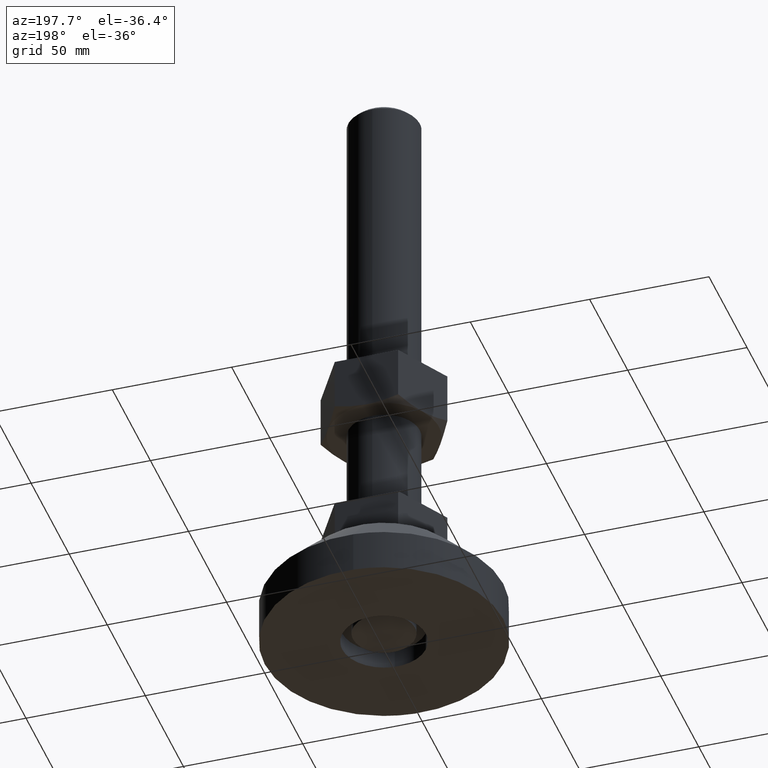
[diagram: clean part render]
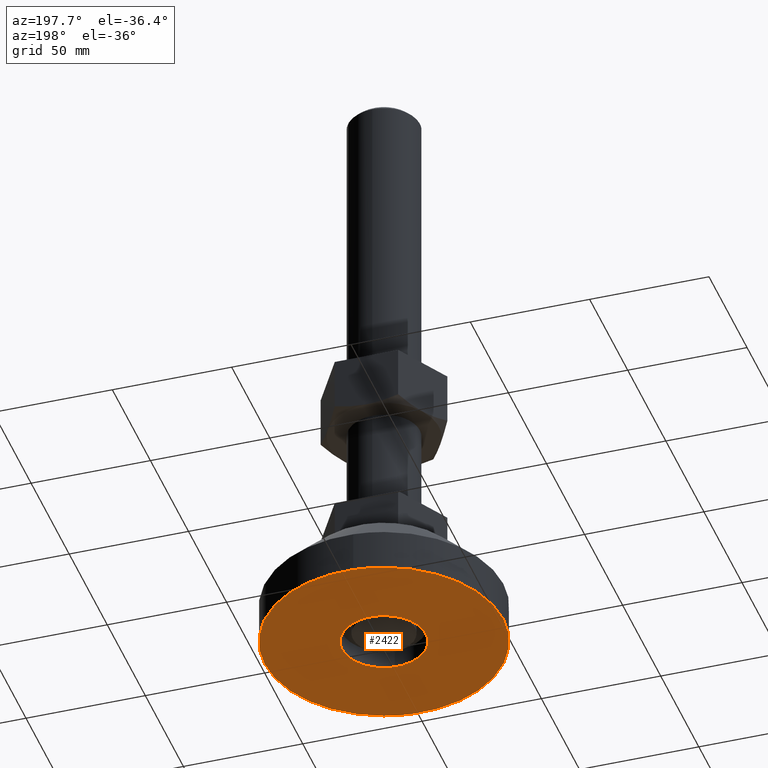
[diagram: same view with one face highlighted and labeled with its STEP entity id]
A machine part, auxiliary view. The second image highlights one B-rep face of the part: STEP entity #2422.
In plain terms, the highlighted face is a freeform B-spline surface patch.
Its self-contained STEP definition (entity closure, byte-faithful):
#2243=CARTESIAN_POINT('',(3.052355231261034,-49.906744309131483,-5.517808E-014));
#2244=VERTEX_POINT('',#2243);
#2250=CARTESIAN_POINT('',(50.000000000000220,0.0,0.0));
#2251=VERTEX_POINT('',#2250);
#2252=CARTESIAN_POINT('',(50.000000000000220,0.0,0.0));
#2253=CARTESIAN_POINT('',(49.999999999998650,-47.035371089185354,-2.758904E-014));
#2254=CARTESIAN_POINT('',(3.052355231261034,-49.906744309131490,-5.517808E-014));
#2262=(BOUNDED_CURVE()B_SPLINE_CURVE(2,(#2252,#2253,#2254),.UNSPECIFIED.,.F.,.U.)B_SPLINE_CURVE_WITH_KNOTS((3,3),(0.500000000000000,0.739333210293733),.UNSPECIFIED.)CURVE()GEOMETRIC_REPRESENTATION_ITEM()RATIONAL_B_SPLINE_CURVE((1.0,0.719603702672447,0.976072573295928))REPRESENTATION_ITEM(''));
#2263=EDGE_CURVE('',#2251,#2244,#2262,.T.);
#2265=CARTESIAN_POINT('',(-3.052355231260599,49.906744309131483,-5.723200E-014));
#2266=VERTEX_POINT('',#2265);
#2267=CARTESIAN_POINT('',(-3.052355231260599,49.906744309131483,-5.723200E-014));
#2268=CARTESIAN_POINT('',(-1.527602191605375,49.999999999949175,-5.640956E-014));
#2269=CARTESIAN_POINT('',(3.285217E-012,49.999999999949949,-5.553528E-014));
#2270=CARTESIAN_POINT('',(50.000000000001705,49.999999999975742,-2.691928E-014));
#2271=CARTESIAN_POINT('',(50.000000000000220,0.0,0.0));
#2279=(BOUNDED_CURVE()B_SPLINE_CURVE(2,(#2267,#2268,#2269,#2270,#2271),.UNSPECIFIED.,.F.,.U.)B_SPLINE_CURVE_WITH_KNOTS((3,2,3),(0.239333210293733,0.250000000000000,0.500000000000000),.UNSPECIFIED.)CURVE()GEOMETRIC_REPRESENTATION_ITEM()RATIONAL_B_SPLINE_CURVE((0.976072573295928,0.987503078514101,1.0,0.707106781186547,1.0))REPRESENTATION_ITEM(''));
#2280=EDGE_CURVE('',#2266,#2251,#2279,.T.);
#2310=CARTESIAN_POINT('',(-49.999999999999787,0.0,-5.684342E-014));
#2311=VERTEX_POINT('',#2310);
#2312=CARTESIAN_POINT('',(-49.999999999999787,0.0,-5.684342E-014));
#2313=CARTESIAN_POINT('',(-49.999999999998209,47.035371089185347,-5.703771E-014));
#2314=CARTESIAN_POINT('',(-3.052355231260599,49.906744309131483,-5.723200E-014));
#2322=(BOUNDED_CURVE()B_SPLINE_CURVE(2,(#2312,#2313,#2314),.UNSPECIFIED.,.F.,.U.)B_SPLINE_CURVE_WITH_KNOTS((3,3),(0.0,0.239333210293733),.UNSPECIFIED.)CURVE()GEOMETRIC_REPRESENTATION_ITEM()RATIONAL_B_SPLINE_CURVE((1.0,0.719603702672447,0.976072573295928))REPRESENTATION_ITEM(''));
#2323=EDGE_CURVE('',#2311,#2266,#2322,.T.);
#2325=CARTESIAN_POINT('',(3.052355231261034,-49.906744309131490,-5.517808E-014));
#2326=CARTESIAN_POINT('',(1.527602191605813,-49.999999999949175,-5.520202E-014));
#2327=CARTESIAN_POINT('',(-2.842517E-012,-49.999999999949956,-5.522746E-014));
#2328=CARTESIAN_POINT('',(-50.000000000001272,-49.999999999975742,-5.606012E-014));
#2329=CARTESIAN_POINT('',(-49.999999999999787,0.0,-5.684342E-014));
#2337=(BOUNDED_CURVE()B_SPLINE_CURVE(2,(#2325,#2326,#2327,#2328,#2329),.UNSPECIFIED.,.F.,.U.)B_SPLINE_CURVE_WITH_KNOTS((3,2,3),(0.739333210293733,0.750000000000000,1.0),.UNSPECIFIED.)CURVE()GEOMETRIC_REPRESENTATION_ITEM()RATIONAL_B_SPLINE_CURVE((0.976072573295928,0.987503078514101,1.0,0.707106781186547,1.0))REPRESENTATION_ITEM(''));
#2338=EDGE_CURVE('',#2244,#2311,#2337,.T.);
#2345=CARTESIAN_POINT('',(54.994999806180822,-54.993769365459613,-2.842171E-014));
#2346=CARTESIAN_POINT('',(-54.995002488389403,-54.993769365459613,-2.842171E-014));
#2347=CARTESIAN_POINT('',(54.994999806180822,54.993767577320263,-2.842171E-014));
#2348=CARTESIAN_POINT('',(-54.995002488389389,54.993767577320263,-2.842171E-014));
#2349=B_SPLINE_SURFACE_WITH_KNOTS('',1,1,((#2345,#2347),(#2346,#2348)),.UNSPECIFIED.,.F.,.F.,.U.,(2,2),(2,2),(0.0,109.990002294570200),(0.0,109.987536942779900),.UNSPECIFIED.);
#2350=ORIENTED_EDGE('',*,*,#2323,.T.);
#2351=ORIENTED_EDGE('',*,*,#2280,.T.);
#2352=ORIENTED_EDGE('',*,*,#2263,.T.);
#2353=ORIENTED_EDGE('',*,*,#2338,.T.);
#2354=EDGE_LOOP('',(#2350,#2351,#2352,#2353));
#2355=FACE_OUTER_BOUND('',#2354,.T.);
#2356=CARTESIAN_POINT('',(-17.499999999999901,-1.705303E-013,0.0));
#2357=VERTEX_POINT('',#2356);
#2358=CARTESIAN_POINT('',(-1.068349442234179,17.467358972359609,1.105163E-013));
#2359=VERTEX_POINT('',#2358);
#2360=CARTESIAN_POINT('',(-17.499999999999901,-1.705303E-013,0.0));
#2361=CARTESIAN_POINT('',(-17.499999999999897,16.462356170496090,1.044394E-013));
#2362=CARTESIAN_POINT('',(-1.068349442234178,17.467358972359616,1.108152E-013));
#2370=(BOUNDED_CURVE()B_SPLINE_CURVE(2,(#2360,#2361,#2362),.UNSPECIFIED.,.F.,.U.)B_SPLINE_CURVE_WITH_KNOTS((3,3),(0.500000000000000,0.739332962238271),.UNSPECIFIED.)CURVE()GEOMETRIC_REPRESENTATION_ITEM()RATIONAL_B_SPLINE_CURVE((1.0,0.719603993287497,0.976072041665278))REPRESENTATION_ITEM(''));
#2371=EDGE_CURVE('',#2357,#2359,#2370,.T.);
#2372=ORIENTED_EDGE('',*,*,#2371,.F.);
#2373=CARTESIAN_POINT('',(1.068349442234380,-17.467358972359950,1.106198E-013));
#2374=VERTEX_POINT('',#2373);
#2375=CARTESIAN_POINT('',(1.068349442234381,-17.467358972359946,1.110223E-013));
#2376=CARTESIAN_POINT('',(0.534673357913072,-17.500000000000174,1.110223E-013));
#2377=CARTESIAN_POINT('',(9.947598E-014,-17.500000000000171,1.110223E-013));
#2378=CARTESIAN_POINT('',(-17.499999999999897,-17.500000000000167,1.110223E-013));
#2379=CARTESIAN_POINT('',(-17.499999999999901,-1.705303E-013,1.110223E-013));
#2387=(BOUNDED_CURVE()B_SPLINE_CURVE(2,(#2375,#2376,#2377,#2378,#2379),.UNSPECIFIED.,.F.,.U.)B_SPLINE_CURVE_WITH_KNOTS((3,2,3),(0.239332962238271,0.250000000000000,0.500000000000000),.UNSPECIFIED.)CURVE()GEOMETRIC_REPRESENTATION_ITEM()RATIONAL_B_SPLINE_CURVE((0.976072041665278,0.987502787899050,1.0,0.707106781186548,1.0))REPRESENTATION_ITEM(''));
#2388=EDGE_CURVE('',#2374,#2357,#2387,.T.);
#2389=ORIENTED_EDGE('',*,*,#2388,.F.);
#2390=CARTESIAN_POINT('',(17.500000000000099,-1.705303E-013,1.110223E-013));
#2391=VERTEX_POINT('',#2390);
#2392=CARTESIAN_POINT('',(17.500000000000099,-1.705303E-013,1.110223E-013));
#2393=CARTESIAN_POINT('',(17.500000000000107,-16.462356170496424,1.110223E-013));
#2394=CARTESIAN_POINT('',(1.068349442234378,-17.467358972359957,1.110223E-013));
#2402=(BOUNDED_CURVE()B_SPLINE_CURVE(2,(#2392,#2393,#2394),.UNSPECIFIED.,.F.,.U.)B_SPLINE_CURVE_WITH_KNOTS((3,3),(0.0,0.239332962238271),.UNSPECIFIED.)CURVE()GEOMETRIC_REPRESENTATION_ITEM()RATIONAL_B_SPLINE_CURVE((1.0,0.719603993287497,0.976072041665278))REPRESENTATION_ITEM(''));
#2403=EDGE_CURVE('',#2391,#2374,#2402,.T.);
#2404=ORIENTED_EDGE('',*,*,#2403,.F.);
#2405=CARTESIAN_POINT('',(-1.068349442234178,17.467358972359616,1.108152E-013));
#2406=CARTESIAN_POINT('',(-0.534673357912872,17.499999999999837,1.110223E-013));
#2407=CARTESIAN_POINT('',(9.947598E-014,17.499999999999829,1.110223E-013));
#2408=CARTESIAN_POINT('',(17.500000000000110,17.499999999999840,1.110223E-013));
#2409=CARTESIAN_POINT('',(17.500000000000099,-1.705303E-013,1.110223E-013));
#2417=(BOUNDED_CURVE()B_SPLINE_CURVE(2,(#2405,#2406,#2407,#2408,#2409),.UNSPECIFIED.,.F.,.U.)B_SPLINE_CURVE_WITH_KNOTS((3,2,3),(0.739332962238271,0.750000000000000,1.0),.UNSPECIFIED.)CURVE()GEOMETRIC_REPRESENTATION_ITEM()RATIONAL_B_SPLINE_CURVE((0.976072041665278,0.987502787899050,1.0,0.707106781186548,1.0))REPRESENTATION_ITEM(''));
#2418=EDGE_CURVE('',#2359,#2391,#2417,.T.);
#2419=ORIENTED_EDGE('',*,*,#2418,.F.);
#2420=EDGE_LOOP('',(#2372,#2389,#2404,#2419));
#2421=FACE_BOUND('',#2420,.T.);
#2422=ADVANCED_FACE('',(#2355,#2421),#2349,.T.);